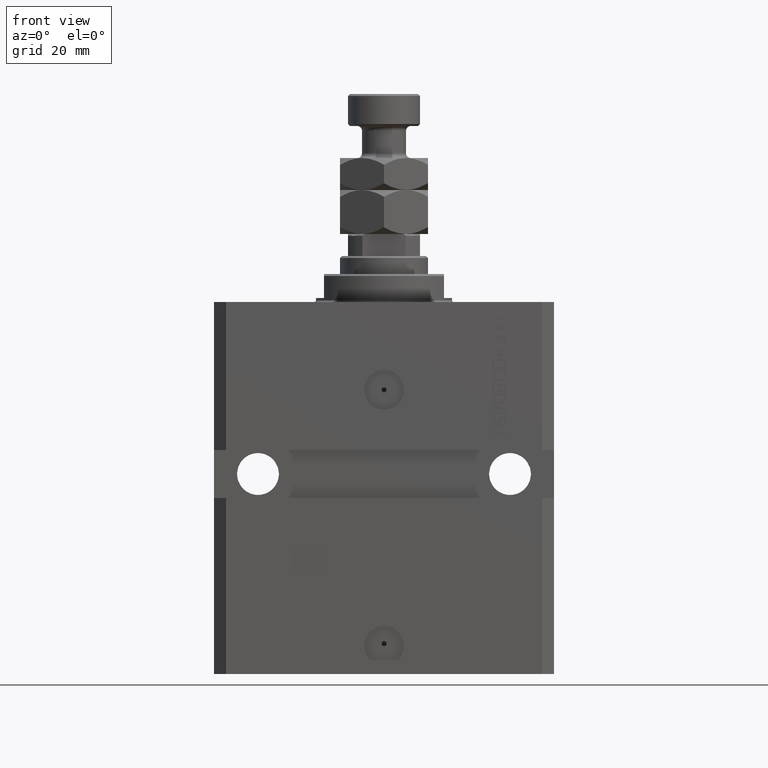
[diagram: clean part render]
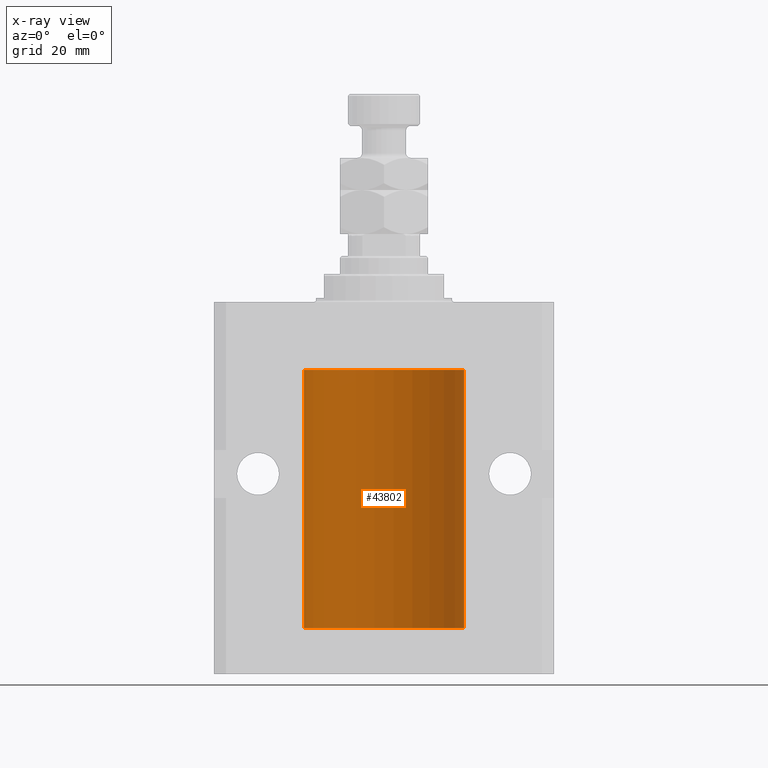
[diagram: x-ray — body ghosted, one internal face saturated and labeled with its STEP entity id]
A machine part, front view, then the same camera in x-ray: the body is ghosted and one INTERNAL B-rep face — a face not visible from any outside direction — is saturated and labeled: STEP entity #43802.
In plain terms, the highlighted cylindrical surface (partial cylindrical patch) has radius 20 mm, axis along (0, 0, 1).
Its self-contained STEP definition (entity closure, byte-faithful):
#440 = VECTOR ( 'NONE', #16096, 1000.000000000000000 ) ;
#1399 = DIRECTION ( 'NONE',  ( 1.000000000000000000, 0.000000000000000000, 0.000000000000000000 ) ) ;
#2559 = CARTESIAN_POINT ( 'NONE',  ( -19.99023018003212471, 0.6250578794725500931, -24.16284809704970371 ) ) ;
#2767 = CARTESIAN_POINT ( 'NONE',  ( -19.99769349528941831, 0.3253804398728615266, -79.55855820727680339 ) ) ;
#3014 = CARTESIAN_POINT ( 'NONE',  ( -20.00000000000000000, -1.124177324826063808E-14, -78.37500000000000000 ) ) ;
#3451 = LINE ( 'NONE', #45531, #24102 ) ;
#3917 = LINE ( 'NONE', #11617, #440 ) ;
#4512 = ORIENTED_EDGE ( 'NONE', *, *, #19642, .F. ) ;
#4807 = CARTESIAN_POINT ( 'NONE',  ( -20.00000000000000000, -1.124177324826063808E-14, -78.37500000000000000 ) ) ;
#4901 = DIRECTION ( 'NONE',  ( -0.000000000000000000, -0.000000000000000000, 1.000000000000000000 ) ) ;
#5972 = AXIS2_PLACEMENT_3D ( 'NONE', #9841, #16565, #6099 ) ;
#6099 = DIRECTION ( 'NONE',  ( 1.000000000000000000, 0.000000000000000000, 0.000000000000000000 ) ) ;
#7216 = CARTESIAN_POINT ( 'NONE',  ( -19.99256581701871482, 0.5573276956902001311, -23.67348565770948809 ) ) ;
#7451 = EDGE_LOOP ( 'NONE', ( #32632, #38664, #35123, #23738, #4512, #20358, #41267, #21881 ) ) ;
#7938 = CARTESIAN_POINT ( 'NONE',  ( -19.99766197842594906, 0.3150331617867667688, -23.45402070102505476 ) ) ;
#8963 = LINE ( 'NONE', #24139, #32074 ) ;
#9841 = CARTESIAN_POINT ( 'NONE',  ( 0.000000000000000000, 0.000000000000000000, -81.59999999999999432 ) ) ;
#10368 = VERTEX_POINT ( 'NONE', #35611 ) ;
#10943 = CARTESIAN_POINT ( 'NONE',  ( -20.00000000000000000, -2.867584836844214272E-15, -23.37500000000000000 ) ) ;
#11617 = CARTESIAN_POINT ( 'NONE',  ( -20.00000000000000000, 2.449293598294706513E-15, -81.59999999999999432 ) ) ;
#12184 = CARTESIAN_POINT ( 'NONE',  ( -20.00000000000010303, 3.580159278407742946E-13, -24.62500000000332889 ) ) ;
#13359 = LINE ( 'NONE', #43752, #34151 ) ;
#13707 = CARTESIAN_POINT ( 'NONE',  ( -19.99999999999999289, 0.08259581631026131909, -78.37499999999998579 ) ) ;
#14769 = VERTEX_POINT ( 'NONE', #24662 ) ;
#15473 = B_SPLINE_CURVE_WITH_KNOTS ( 'NONE', 3,
 ( #3014, #13707, #48582, #25148, #29646, #25655, #28645, #29145, #44353, #2767, #33128, #36367 ),
 .UNSPECIFIED., .F., .F.,
 ( 4, 2, 2, 2, 2, 4 ),
 ( 1.522880481566060999E-18, 0.0002442693137305179392, 0.0004885386274610343605, 0.0009770772549220966934, 0.001465615882383158918, 0.001954154509844221576 ),
 .UNSPECIFIED. ) ;
#16096 = DIRECTION ( 'NONE',  ( -0.000000000000000000, -0.000000000000000000, 1.000000000000000000 ) ) ;
#16565 = DIRECTION ( 'NONE',  ( 0.000000000000000000, 0.000000000000000000, 1.000000000000000000 ) ) ;
#16605 = CARTESIAN_POINT ( 'NONE',  ( -20.00000000000010303, 3.580159286679549072E-13, -79.62500000000332534 ) ) ;
#16797 = VERTEX_POINT ( 'NONE', #16605 ) ;
#19586 = CYLINDRICAL_SURFACE ( 'NONE', #37531, 20.00000000000000000 ) ;
#19642 = EDGE_CURVE ( 'NONE', #21589, #31458, #3451, .T. ) ;
#20068 = CARTESIAN_POINT ( 'NONE',  ( 0.000000000000000000, 0.000000000000000000, -81.59999999999999432 ) ) ;
#20183 = AXIS2_PLACEMENT_3D ( 'NONE', #44684, #22492, #41682 ) ;
#20303 = EDGE_CURVE ( 'NONE', #48429, #32094, #8963, .T. ) ;
#20358 = ORIENTED_EDGE ( 'NONE', *, *, #30754, .T. ) ;
#21087 = CIRCLE ( 'NONE', #5972, 20.00000000000000000 ) ;
#21389 = EDGE_CURVE ( 'NONE', #36365, #31458, #41672, .T. ) ;
#21589 = VERTEX_POINT ( 'NONE', #26117 ) ;
#21881 = ORIENTED_EDGE ( 'NONE', *, *, #22511, .T. ) ;
#22492 = DIRECTION ( 'NONE',  ( 0.000000000000000000, 0.000000000000000000, 1.000000000000000000 ) ) ;
#22511 = EDGE_CURVE ( 'NONE', #48429, #16797, #15473, .T. ) ;
#22867 = CARTESIAN_POINT ( 'NONE',  ( -19.99999999999999645, 0.08259581631026780002, -23.37500000000000000 ) ) ;
#23738 = ORIENTED_EDGE ( 'NONE', *, *, #21389, .T. ) ;
#23897 = DIRECTION ( 'NONE',  ( -0.000000000000000000, -0.000000000000000000, 1.000000000000000000 ) ) ;
#24102 = VECTOR ( 'NONE', #25848, 1000.000000000000000 ) ;
#24139 = CARTESIAN_POINT ( 'NONE',  ( -20.00000000000000000, 2.449293598294706513E-15, -81.59999999999999432 ) ) ;
#24403 = EDGE_CURVE ( 'NONE', #14769, #16797, #3917, .T. ) ;
#24517 = EDGE_CURVE ( 'NONE', #10368, #14769, #21087, .T. ) ;
#24662 = CARTESIAN_POINT ( 'NONE',  ( -20.00000000000000000, 2.449293598294706513E-15, -81.59999999999999432 ) ) ;
#25148 = CARTESIAN_POINT ( 'NONE',  ( -19.99766197842594551, 0.3150331617867603295, -78.45402070102504410 ) ) ;
#25186 = CARTESIAN_POINT ( 'NONE',  ( -19.99947377218718714, 0.1636439183262877461, -23.39126364004656011 ) ) ;
#25655 = CARTESIAN_POINT ( 'NONE',  ( -19.99256581701871838, 0.5573276956901996870, -78.67348565770949165 ) ) ;
#25770 = CARTESIAN_POINT ( 'NONE',  ( -20.00000000000010303, 3.580159278407742946E-13, -24.62500000000332889 ) ) ;
#25848 = DIRECTION ( 'NONE',  ( -0.000000000000000000, -0.000000000000000000, 1.000000000000000000 ) ) ;
#26117 = CARTESIAN_POINT ( 'NONE',  ( -20.00000000000000000, -2.867584836844214272E-15, -23.37500000000000000 ) ) ;
#27843 = B_SPLINE_CURVE_WITH_KNOTS ( 'NONE', 3,
 ( #10943, #22867, #25186, #7938, #33848, #7216, #40397, #2559, #37588, #39061, #39297, #12184 ),
 .UNSPECIFIED., .F., .F.,
 ( 4, 2, 2, 2, 2, 4 ),
 ( 5.848927291235706941E-19, 0.0002442693137305304075, 0.0004885386274610601645, 0.0009770772549221123059, 0.001465615882383164339, 0.001954154509844215938 ),
 .UNSPECIFIED. ) ;
#28645 = CARTESIAN_POINT ( 'NONE',  ( -19.99023380173166231, 0.6249420416828449509, -78.83670793056396064 ) ) ;
#29145 = CARTESIAN_POINT ( 'NONE',  ( -19.99023018003212471, 0.6250578794725522025, -79.16284809704971792 ) ) ;
#29646 = CARTESIAN_POINT ( 'NONE',  ( -19.99638934703457238, 0.3843678041337651452, -78.50046362978099523 ) ) ;
#30754 = EDGE_CURVE ( 'NONE', #21589, #32094, #27843, .T. ) ;
#31458 = VERTEX_POINT ( 'NONE', #32673 ) ;
#32036 = DIRECTION ( 'NONE',  ( -0.000000000000000000, -0.000000000000000000, 1.000000000000000000 ) ) ;
#32074 = VECTOR ( 'NONE', #23897, 1000.000000000000000 ) ;
#32094 = VERTEX_POINT ( 'NONE', #25770 ) ;
#32632 = ORIENTED_EDGE ( 'NONE', *, *, #24403, .F. ) ;
#32673 = CARTESIAN_POINT ( 'NONE',  ( -20.00000000000000000, 2.449293598294706513E-15, -17.00000000000000000 ) ) ;
#33128 = CARTESIAN_POINT ( 'NONE',  ( -20.00000000000000355, 0.1631688615953343080, -79.62499999999984368 ) ) ;
#33848 = CARTESIAN_POINT ( 'NONE',  ( -19.99638934703457593, 0.3843678041337688644, -23.50046362978100944 ) ) ;
#34151 = VECTOR ( 'NONE', #32036, 1000.000000000000000 ) ;
#35123 = ORIENTED_EDGE ( 'NONE', *, *, #37299, .T. ) ;
#35611 = CARTESIAN_POINT ( 'NONE',  ( 20.00000000000000000, 0.000000000000000000, -81.59999999999999432 ) ) ;
#36365 = VERTEX_POINT ( 'NONE', #39921 ) ;
#36367 = CARTESIAN_POINT ( 'NONE',  ( -20.00000000000010303, 3.580159286679549072E-13, -79.62500000000332534 ) ) ;
#37299 = EDGE_CURVE ( 'NONE', #10368, #36365, #13359, .T. ) ;
#37531 = AXIS2_PLACEMENT_3D ( 'NONE', #20068, #4901, #1399 ) ;
#37588 = CARTESIAN_POINT ( 'NONE',  ( -19.99253506710754991, 0.5587120480776751608, -24.32511620830248589 ) ) ;
#38664 = ORIENTED_EDGE ( 'NONE', *, *, #24517, .F. ) ;
#39061 = CARTESIAN_POINT ( 'NONE',  ( -19.99769349528941120, 0.3253804398728645242, -24.55855820727680339 ) ) ;
#39297 = CARTESIAN_POINT ( 'NONE',  ( -20.00000000000000000, 0.1631688615953320320, -24.62499999999985434 ) ) ;
#39921 = CARTESIAN_POINT ( 'NONE',  ( 20.00000000000000000, 0.000000000000000000, -17.00000000000000000 ) ) ;
#40397 = CARTESIAN_POINT ( 'NONE',  ( -19.99023380173166231, 0.6249420416828462832, -23.83670793056396064 ) ) ;
#41267 = ORIENTED_EDGE ( 'NONE', *, *, #20303, .F. ) ;
#41672 = CIRCLE ( 'NONE', #20183, 20.00000000000000000 ) ;
#41682 = DIRECTION ( 'NONE',  ( 1.000000000000000000, 0.000000000000000000, 0.000000000000000000 ) ) ;
#42514 = FACE_OUTER_BOUND ( 'NONE', #7451, .T. ) ;
#43752 = CARTESIAN_POINT ( 'NONE',  ( 20.00000000000000000, 0.000000000000000000, -81.59999999999999432 ) ) ;
#43802 = ADVANCED_FACE ( 'NONE', ( #42514 ), #19586, .F. ) ;
#44353 = CARTESIAN_POINT ( 'NONE',  ( -19.99253506710754991, 0.5587120480776742726, -79.32511620830248944 ) ) ;
#44684 = CARTESIAN_POINT ( 'NONE',  ( 0.000000000000000000, 0.000000000000000000, -17.00000000000000000 ) ) ;
#45531 = CARTESIAN_POINT ( 'NONE',  ( -20.00000000000000000, 2.449293598294706513E-15, -81.59999999999999432 ) ) ;
#48429 = VERTEX_POINT ( 'NONE', #4807 ) ;
#48582 = CARTESIAN_POINT ( 'NONE',  ( -19.99947377218718003, 0.1636439183262797525, -78.39126364004653169 ) ) ;